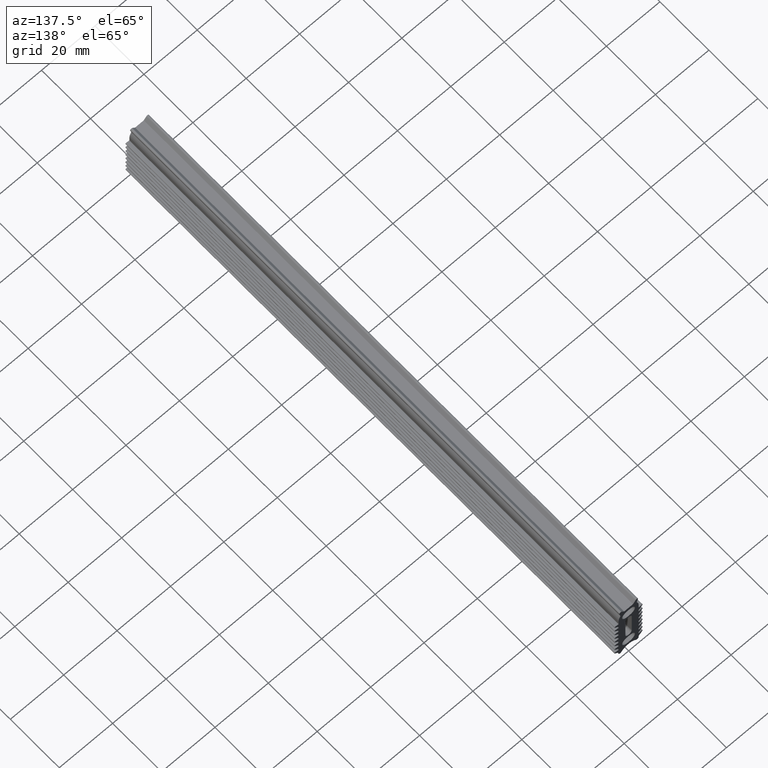
[diagram: clean part render]
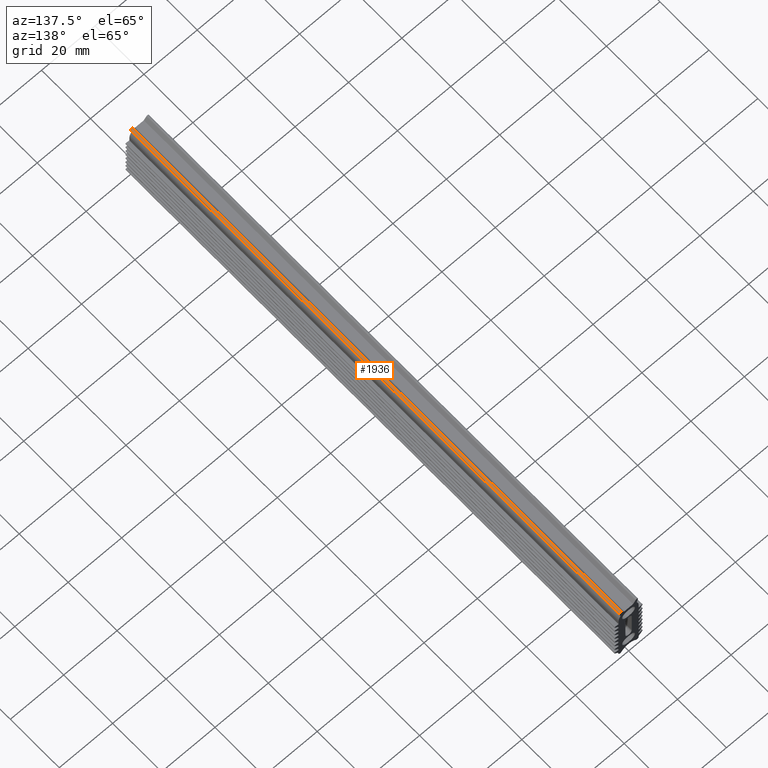
[diagram: same view with one face highlighted and labeled with its STEP entity id]
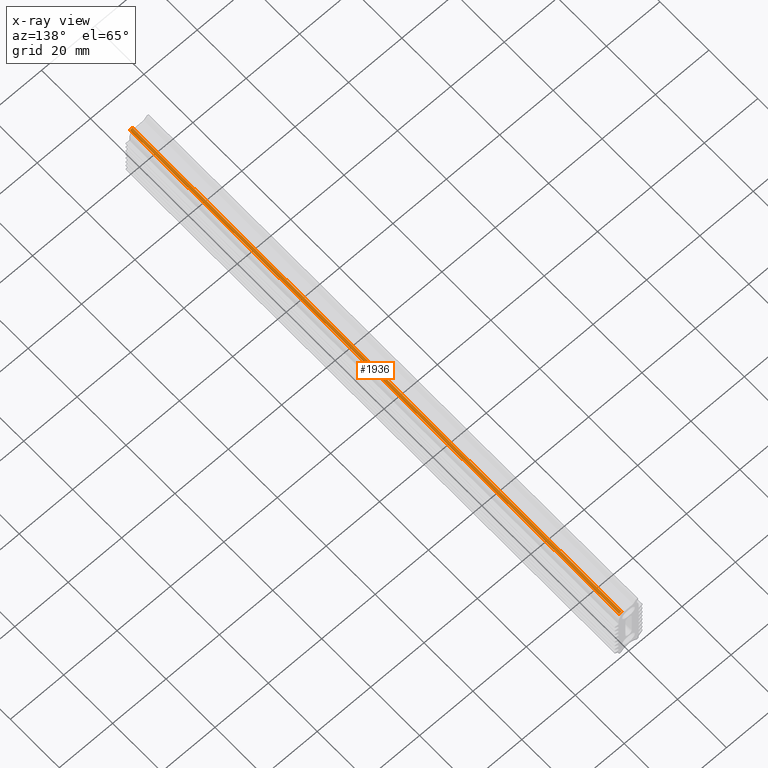
[diagram: x-ray of the same camera — body ghosted, the highlighted face saturated]
A machine part, auxiliary view. The second image highlights one B-rep face of the part: STEP entity #1936.
The next image is the same camera in x-ray: the body ghosted, the highlighted face saturated — about 0% of this face is hidden behind the body in this view.
In plain terms, the highlighted face is a freeform B-spline surface patch.
Its self-contained STEP definition (entity closure, byte-faithful):
#49=CARTESIAN_POINT('',(2.607942751445605,0.0,1.210308095053790));
#50=VERTEX_POINT('',#49);
#799=CARTESIAN_POINT('',(3.482962913144605,0.0,0.770590477448735));
#800=VERTEX_POINT('',#799);
#806=CARTESIAN_POINT('',(3.482962913144605,0.0,0.770590477448735));
#807=CARTESIAN_POINT('',(3.588355314021621,0.0,1.163920272253924));
#808=CARTESIAN_POINT('',(3.224508030528317,0.0,1.346761842851687));
#809=CARTESIAN_POINT('',(2.860660747035013,0.0,1.529603413449450));
#810=CARTESIAN_POINT('',(2.607942751445609,0.0,1.210308095053787));
#818=(BOUNDED_CURVE()B_SPLINE_CURVE(2,(#806,#807,#808,#809,#810),.UNSPECIFIED.,.F.,.U.)B_SPLINE_CURVE_WITH_KNOTS((3,2,3),(0.0,0.500000000000000,1.0),.UNSPECIFIED.)CURVE()GEOMETRIC_REPRESENTATION_ITEM()RATIONAL_B_SPLINE_CURVE((1.0,0.775388696939493,1.0,0.775388696939493,1.0))REPRESENTATION_ITEM(''));
#819=EDGE_CURVE('',#800,#50,#818,.T.);
#979=CARTESIAN_POINT('',(2.607942751445605,200.0,1.210308095053790));
#980=VERTEX_POINT('',#979);
#988=CARTESIAN_POINT('',(3.482962913144605,200.0,0.770590477448735));
#989=VERTEX_POINT('',#988);
#990=CARTESIAN_POINT('',(3.482962913144520,200.0,0.770590477448758));
#991=CARTESIAN_POINT('',(3.588355314021621,200.000000000000060,1.163920272253924));
#992=CARTESIAN_POINT('',(3.224508030528317,200.0,1.346761842851687));
#993=CARTESIAN_POINT('',(2.860660747035013,200.000000000000060,1.529603413449450));
#994=CARTESIAN_POINT('',(2.607942751445609,200.0,1.210308095053787));
#1002=(BOUNDED_CURVE()B_SPLINE_CURVE(2,(#990,#991,#992,#993,#994),.UNSPECIFIED.,.F.,.U.)B_SPLINE_CURVE_WITH_KNOTS((3,2,3),(0.0,0.500000000000000,1.0),.UNSPECIFIED.)CURVE()GEOMETRIC_REPRESENTATION_ITEM()RATIONAL_B_SPLINE_CURVE((1.0,0.775388696939493,1.0,0.775388696939493,1.0))REPRESENTATION_ITEM(''));
#1003=EDGE_CURVE('',#989,#980,#1002,.T.);
#1904=CARTESIAN_POINT('',(2.599954180709102,205.0,1.199938897890593));
#1905=CARTESIAN_POINT('',(2.599954180709102,-5.125000000000000,1.199938897890593));
#1906=CARTESIAN_POINT('',(2.853871200788237,205.0,1.538602682560832));
#1907=CARTESIAN_POINT('',(2.853871200788237,-5.125000000000000,1.538602682560832));
#1908=CARTESIAN_POINT('',(3.229798811621938,205.0,1.344063628523080));
#1909=CARTESIAN_POINT('',(3.229798811621938,-5.125000000000000,1.344063628523080));
#1910=CARTESIAN_POINT('',(3.605726422455639,205.0,1.149524574485327));
#1911=CARTESIAN_POINT('',(3.605726422455639,-5.125000000000000,1.149524574485327));
#1912=CARTESIAN_POINT('',(3.475901306666557,205.0,0.746644379584424));
#1913=CARTESIAN_POINT('',(3.475901306666557,-5.125000000000000,0.746644379584424));
#1921=(BOUNDED_SURFACE()B_SPLINE_SURFACE(1,2,((#1904,#1906,#1908,#1910,#1912),(#1905,#1907,#1909,#1911,#1913)),.UNSPECIFIED.,.F.,.F.,.U.)B_SPLINE_SURFACE_WITH_KNOTS((2,2),(3,2,3),(0.0,210.125000000000110),(0.0,1.0,2.0),.UNSPECIFIED.)GEOMETRIC_REPRESENTATION_ITEM()RATIONAL_B_SPLINE_SURFACE(((1.0,0.763232469782529,1.0,0.763232469782529,1.0),(1.0,0.763232469782529,1.0,0.763232469782529,1.0)))REPRESENTATION_ITEM('')SURFACE());
#1922=ORIENTED_EDGE('',*,*,#819,.F.);
#1923=CARTESIAN_POINT('',(3.482962913144605,200.0,0.770590477448735));
#1924=CARTESIAN_POINT('',(3.482962913144605,0.0,0.770590477448735));
#1925=QUASI_UNIFORM_CURVE('',1,(#1923,#1924),.UNSPECIFIED.,.F.,.U.);
#1926=EDGE_CURVE('',#989,#800,#1925,.T.);
#1927=ORIENTED_EDGE('',*,*,#1926,.F.);
#1928=ORIENTED_EDGE('',*,*,#1003,.T.);
#1929=CARTESIAN_POINT('',(2.607942751445605,200.0,1.210308095053790));
#1930=CARTESIAN_POINT('',(2.607942751445605,0.0,1.210308095053790));
#1931=QUASI_UNIFORM_CURVE('',1,(#1929,#1930),.UNSPECIFIED.,.F.,.U.);
#1932=EDGE_CURVE('',#980,#50,#1931,.T.);
#1933=ORIENTED_EDGE('',*,*,#1932,.T.);
#1934=EDGE_LOOP('',(#1922,#1927,#1928,#1933));
#1935=FACE_OUTER_BOUND('',#1934,.T.);
#1936=ADVANCED_FACE('',(#1935),#1921,.T.);